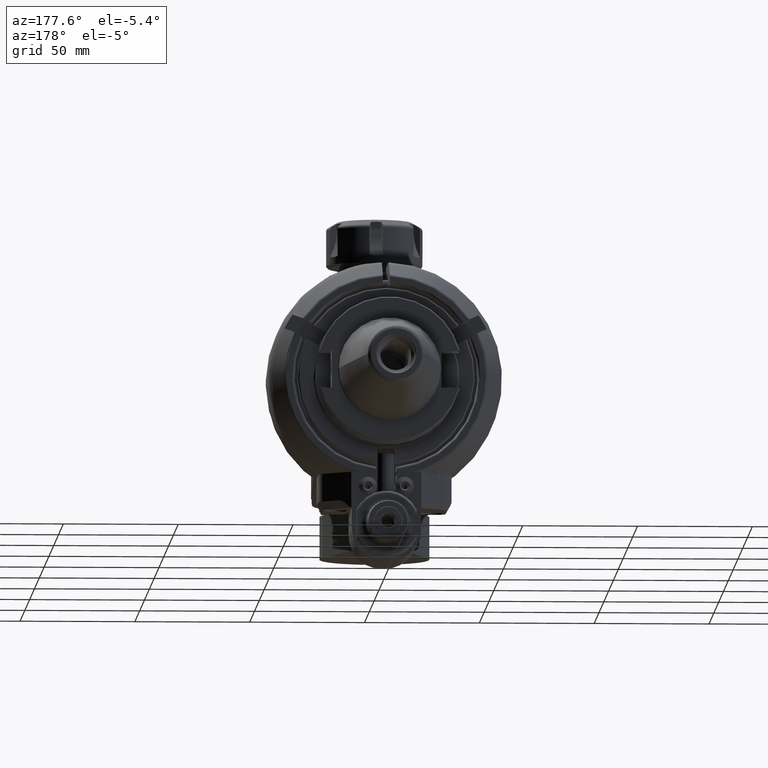
[diagram: clean part render]
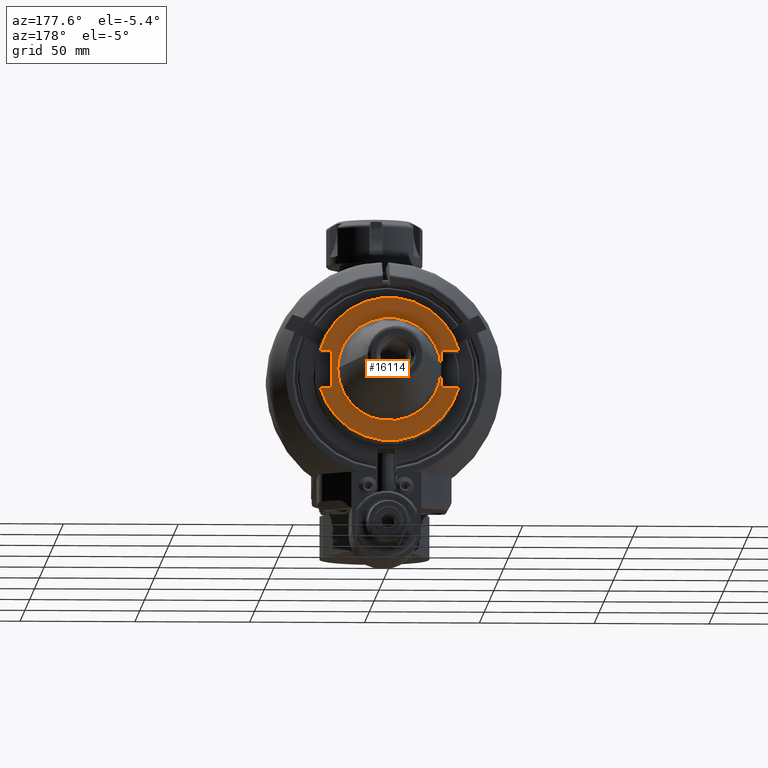
[diagram: same view with one face highlighted and labeled with its STEP entity id]
A machine part, auxiliary view. The second image highlights one B-rep face of the part: STEP entity #16114.
In plain terms, the highlighted planar face has unit normal (0, 1, 0).
Its self-contained STEP definition (entity closure, byte-faithful):
#1088=FACE_BOUND('',#3739,.T.);
#1817=CIRCLE('',#17812,31.25);
#1818=CIRCLE('',#17814,31.25);
#1819=CIRCLE('',#17815,22.525);
#2716=FACE_OUTER_BOUND('',#3738,.T.);
#3738=EDGE_LOOP('',(#14539,#14540,#14541,#14542,#14543,#14544,#14545,#14546));
#3739=EDGE_LOOP('',(#14547));
#4901=LINE('',#31103,#6060);
#4906=LINE('',#31140,#6065);
#4913=LINE('',#31214,#6072);
#4916=LINE('',#31254,#6075);
#4917=LINE('',#31258,#6076);
#4918=LINE('',#31259,#6077);
#6060=VECTOR('',#22126,16.383);
#6065=VECTOR('',#22133,7.551284820588);
#6072=VECTOR('',#22152,5.138284820588);
#6075=VECTOR('',#22173,7.551284820588);
#6076=VECTOR('',#22176,5.138284820588);
#6077=VECTOR('',#22177,16.383);
#7656=VERTEX_POINT('',#31100);
#7657=VERTEX_POINT('',#31102);
#7663=VERTEX_POINT('',#31139);
#7673=VERTEX_POINT('',#31206);
#7674=VERTEX_POINT('',#31213);
#7677=VERTEX_POINT('',#31253);
#7678=VERTEX_POINT('',#31255);
#7679=VERTEX_POINT('',#31257);
#7680=VERTEX_POINT('',#31260);
#9959=EDGE_CURVE('',#7656,#7657,#4901,.T.);
#9966=EDGE_CURVE('',#7657,#7663,#4906,.T.);
#9980=EDGE_CURVE('',#7673,#7674,#4913,.T.);
#9988=EDGE_CURVE('',#7673,#7663,#1817,.T.);
#9989=EDGE_CURVE('',#7677,#7656,#4916,.T.);
#9990=EDGE_CURVE('',#7677,#7678,#1818,.T.);
#9991=EDGE_CURVE('',#7679,#7678,#4917,.T.);
#9992=EDGE_CURVE('',#7674,#7679,#4918,.T.);
#9993=EDGE_CURVE('',#7680,#7680,#1819,.T.);
#14539=ORIENTED_EDGE('',*,*,#9988,.T.);
#14540=ORIENTED_EDGE('',*,*,#9966,.F.);
#14541=ORIENTED_EDGE('',*,*,#9959,.F.);
#14542=ORIENTED_EDGE('',*,*,#9989,.F.);
#14543=ORIENTED_EDGE('',*,*,#9990,.T.);
#14544=ORIENTED_EDGE('',*,*,#9991,.F.);
#14545=ORIENTED_EDGE('',*,*,#9992,.F.);
#14546=ORIENTED_EDGE('',*,*,#9980,.F.);
#14547=ORIENTED_EDGE('',*,*,#9993,.T.);
#15283=PLANE('',#17813);
#16114=ADVANCED_FACE('',(#2716,#1088),#15283,.T.);
#17812=AXIS2_PLACEMENT_3D('',#31251,#22169,#22170);
#17813=AXIS2_PLACEMENT_3D('',#31252,#22171,#22172);
#17814=AXIS2_PLACEMENT_3D('',#31256,#22174,#22175);
#17815=AXIS2_PLACEMENT_3D('',#31261,#22178,#22179);
#22126=DIRECTION('',(0.,0.,-1.));
#22133=DIRECTION('',(-1.,0.,2.940487747458E-14));
#22152=DIRECTION('',(-1.,0.,-3.94109487431E-14));
#22169=DIRECTION('center_axis',(0.,1.,0.));
#22170=DIRECTION('ref_axis',(0.965033114258782,0.,-0.262127999999995));
#22171=DIRECTION('center_axis',(0.,1.,0.));
#22172=DIRECTION('ref_axis',(-1.,0.,0.));
#22173=DIRECTION('',(1.,0.,2.7758204336E-14));
#22174=DIRECTION('center_axis',(0.,1.,0.));
#22175=DIRECTION('ref_axis',(-0.965033114258782,0.,0.262127999999995));
#22176=DIRECTION('',(1.,0.,-4.217662935665E-14));
#22177=DIRECTION('',(0.,0.,1.));
#22178=DIRECTION('center_axis',(0.,-1.,0.));
#22179=DIRECTION('ref_axis',(1.,0.,0.));
#31100=CARTESIAN_POINT('',(-22.606,71.325,8.1915));
#31102=CARTESIAN_POINT('',(-22.606,71.325,-8.1915));
#31103=CARTESIAN_POINT('',(-22.606,71.325,8.1915));
#31139=CARTESIAN_POINT('',(-30.15728482059,71.325,-8.1915));
#31140=CARTESIAN_POINT('',(-22.606,71.325,-8.1915));
#31206=CARTESIAN_POINT('',(30.15728482059,71.325,-8.1915));
#31213=CARTESIAN_POINT('',(25.019,71.325,-8.1915));
#31214=CARTESIAN_POINT('',(30.15728482059,71.325,-8.1915));
#31251=CARTESIAN_POINT('Origin',(0.,71.325,0.));
#31252=CARTESIAN_POINT('Origin',(-22.468145,71.325,0.));
#31253=CARTESIAN_POINT('',(-30.15728482059,71.325,8.1915));
#31254=CARTESIAN_POINT('',(-30.15728482059,71.325,8.1915));
#31255=CARTESIAN_POINT('',(30.15728482059,71.325,8.1915));
#31256=CARTESIAN_POINT('Origin',(0.,71.325,0.));
#31257=CARTESIAN_POINT('',(25.019,71.325,8.1915));
#31258=CARTESIAN_POINT('',(25.019,71.325,8.1915));
#31259=CARTESIAN_POINT('',(25.019,71.325,-8.1915));
#31260=CARTESIAN_POINT('',(-22.525,71.325,-2.75851691507941E-15));
#31261=CARTESIAN_POINT('Origin',(0.,71.325,0.));